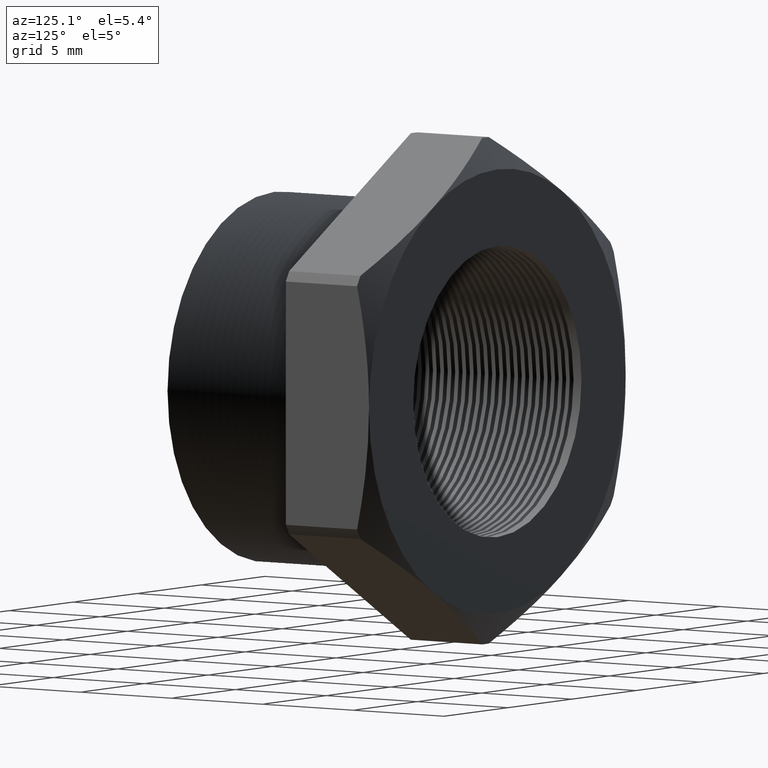
[diagram: clean part render]
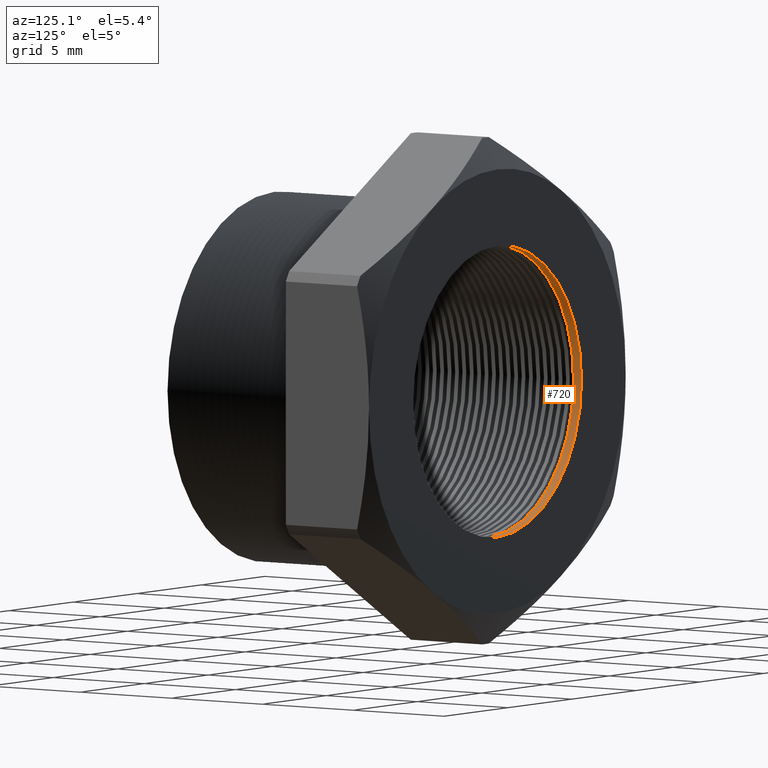
[diagram: same view with one face highlighted and labeled with its STEP entity id]
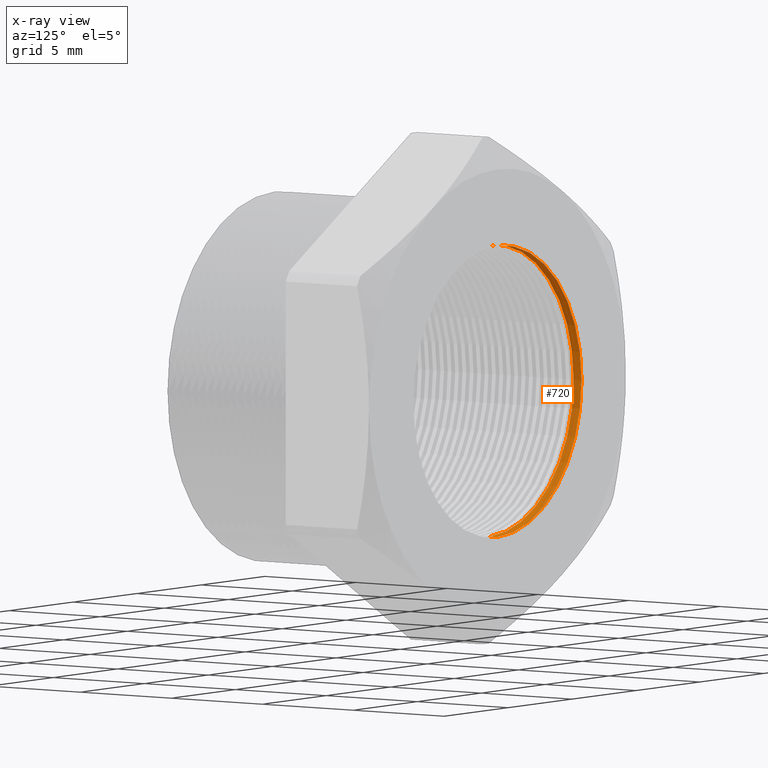
[diagram: x-ray of the same camera — body ghosted, the highlighted face saturated]
A machine part, auxiliary view. The second image highlights one B-rep face of the part: STEP entity #720.
The next image is the same camera in x-ray: the body ghosted, the highlighted face saturated — about 0% of this face is hidden behind the body in this view.
In plain terms, the highlighted cylindrical surface (partial cylindrical patch) has radius 6.5783 mm, axis along (-0, -1, -0).
Its self-contained STEP definition (entity closure, byte-faithful):
#667 = EDGE_CURVE ( 'NONE', #668, #669, #2581, .T. ) ;
#668 = VERTEX_POINT ( 'NONE', #2576 ) ;
#669 = VERTEX_POINT ( 'NONE', #2575 ) ;
#720 = ADVANCED_FACE ( 'NONE', ( #2670 ), #2668, .F. ) ;
#721 = EDGE_LOOP ( 'NONE', ( #722, #726, #728, #729 ) ) ;
#722 = ORIENTED_EDGE ( 'NONE', *, *, #723, .F. ) ;
#723 = EDGE_CURVE ( 'NONE', #724, #725, #2669, .T. ) ;
#724 = VERTEX_POINT ( 'NONE', #2659 ) ;
#725 = VERTEX_POINT ( 'NONE', #2658 ) ;
#726 = ORIENTED_EDGE ( 'NONE', *, *, #727, .T. ) ;
#727 = EDGE_CURVE ( 'NONE', #724, #669, #2657, .T. ) ;
#728 = ORIENTED_EDGE ( 'NONE', *, *, #667, .F. ) ;
#729 = ORIENTED_EDGE ( 'NONE', *, *, #730, .F. ) ;
#730 = EDGE_CURVE ( 'NONE', #725, #668, #2653, .T. ) ;
#2575 = CARTESIAN_POINT ( 'NONE',  ( 3.171688816986526800E-017, 0.3903219653570460000, 0.2589880461203001900 ) ) ;
#2576 = CARTESIAN_POINT ( 'NONE',  ( 0.0000000000000000000, 0.3903219653570460000, -0.2589880461203001900 ) ) ;
#2577 = DIRECTION ( 'NONE',  ( 0.0000000000000000000, 0.0000000000000000000, -1.000000000000000000 ) ) ;
#2578 = DIRECTION ( 'NONE',  ( -0.0000000000000000000, 1.000000000000000000, -0.0000000000000000000 ) ) ;
#2579 = CARTESIAN_POINT ( 'NONE',  ( 0.0000000000000000000, 0.3903219653570460000, 0.0000000000000000000 ) ) ;
#2580 = AXIS2_PLACEMENT_3D ( 'NONE', #2579, #2578, #2577 ) ;
#2581 = CIRCLE ( 'NONE', #2580, 0.2589880461203001900 ) ;
#2650 = DIRECTION ( 'NONE',  ( -0.0000000000000000000, -1.000000000000000000, -0.0000000000000000000 ) ) ;
#2651 = VECTOR ( 'NONE', #2650, 39.37007874015748100 ) ;
#2652 = CARTESIAN_POINT ( 'NONE',  ( 0.0000000000000000000, 0.0000000000000000000, -0.2589880461203001900 ) ) ;
#2653 = LINE ( 'NONE', #2652, #2651 ) ;
#2654 = DIRECTION ( 'NONE',  ( -0.0000000000000000000, -1.000000000000000000, -0.0000000000000000000 ) ) ;
#2655 = VECTOR ( 'NONE', #2654, 39.37007874015748100 ) ;
#2656 = CARTESIAN_POINT ( 'NONE',  ( 3.171688816986526800E-017, 0.0000000000000000000, 0.2589880461203001900 ) ) ;
#2657 = LINE ( 'NONE', #2656, #2655 ) ;
#2658 = CARTESIAN_POINT ( 'NONE',  ( 0.0000000000000000000, 0.4075548905829479200, -0.2589880461203001900 ) ) ;
#2659 = CARTESIAN_POINT ( 'NONE',  ( 3.171688816986526800E-017, 0.4075548905829479200, 0.2589880461203001900 ) ) ;
#2660 = DIRECTION ( 'NONE',  ( 0.0000000000000000000, 0.0000000000000000000, -1.000000000000000000 ) ) ;
#2661 = DIRECTION ( 'NONE',  ( -0.0000000000000000000, -1.000000000000000000, -0.0000000000000000000 ) ) ;
#2662 = CARTESIAN_POINT ( 'NONE',  ( 0.0000000000000000000, 0.4075548905829479200, 0.0000000000000000000 ) ) ;
#2663 = AXIS2_PLACEMENT_3D ( 'NONE', #2662, #2661, #2660 ) ;
#2664 = DIRECTION ( 'NONE',  ( 0.0000000000000000000, 0.0000000000000000000, -1.000000000000000000 ) ) ;
#2665 = DIRECTION ( 'NONE',  ( -0.0000000000000000000, -1.000000000000000000, -0.0000000000000000000 ) ) ;
#2666 = CARTESIAN_POINT ( 'NONE',  ( 0.0000000000000000000, 0.0000000000000000000, 0.0000000000000000000 ) ) ;
#2667 = AXIS2_PLACEMENT_3D ( 'NONE', #2666, #2665, #2664 ) ;
#2668 = CYLINDRICAL_SURFACE ( 'NONE', #2667, 0.2589880461203001900 ) ;
#2669 = CIRCLE ( 'NONE', #2663, 0.2589880461203001900 ) ;
#2670 = FACE_OUTER_BOUND ( 'NONE', #721, .T. ) ;